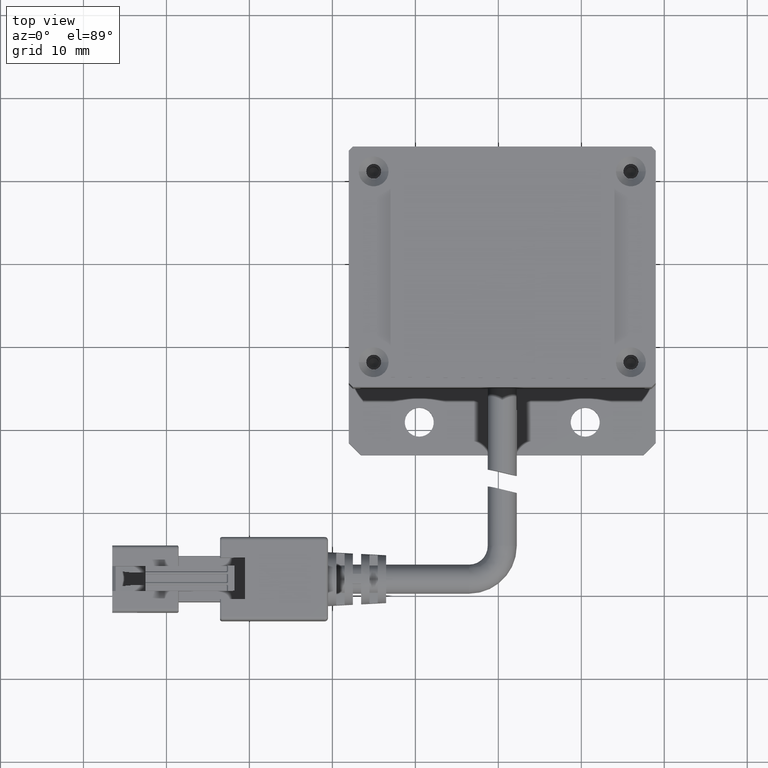
[diagram: clean part render]
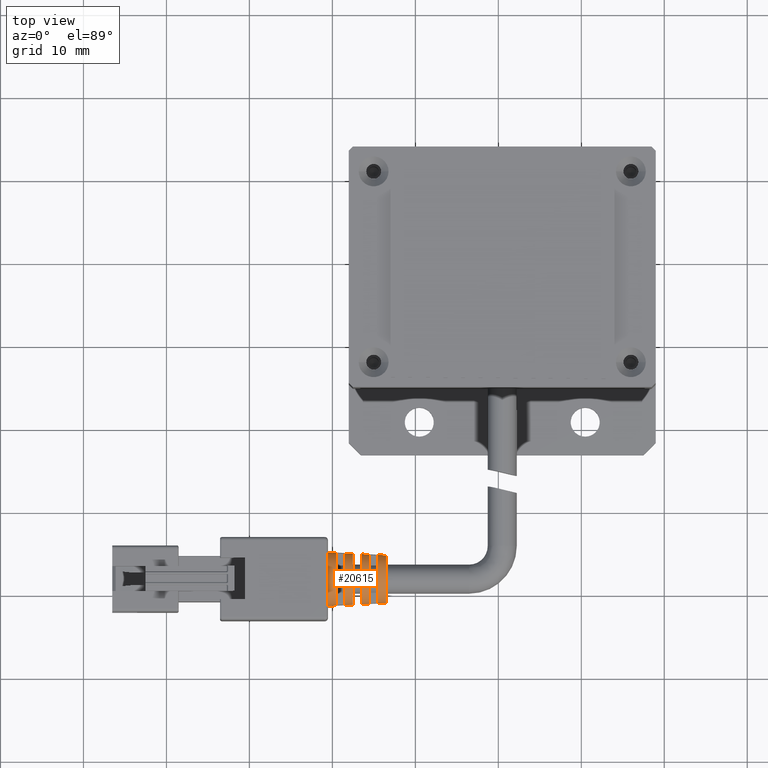
[diagram: same view with one face highlighted and labeled with its STEP entity id]
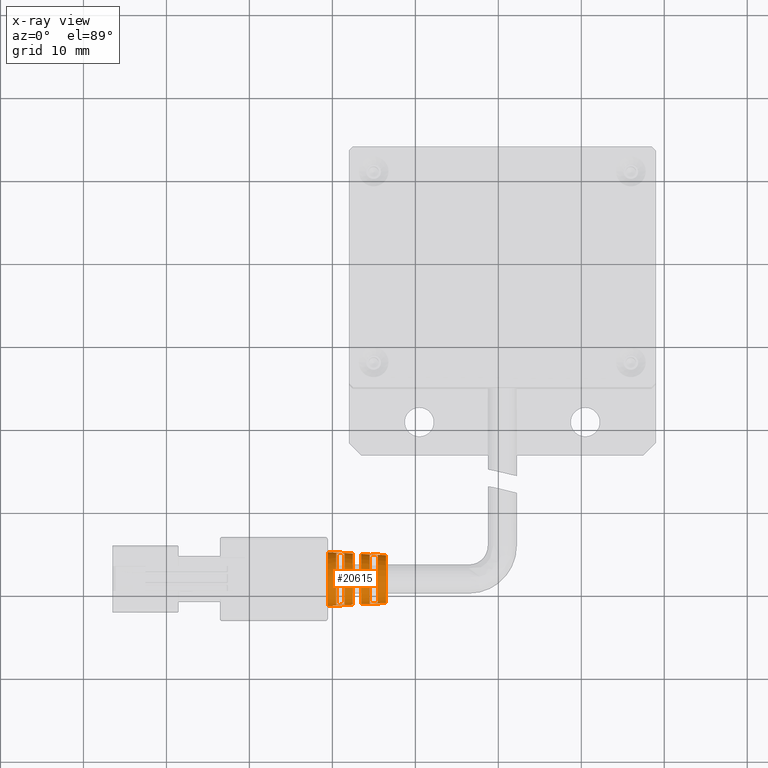
[diagram: x-ray of the same camera — body ghosted, the highlighted face saturated]
A machine part, top view. The second image highlights one B-rep face of the part: STEP entity #20615.
The next image is the same camera in x-ray: the body ghosted, the highlighted face saturated — about 0% of this face is hidden behind the body in this view.
In plain terms, the highlighted conical surface has half-angle 3 deg.
Its self-contained STEP definition (entity closure, byte-faithful):
#107 = ORIENTED_EDGE ( 'NONE', *, *, #15529, .T. ) ;
#405 = ORIENTED_EDGE ( 'NONE', *, *, #11878, .F. ) ;
#526 = DIRECTION ( 'NONE',  ( 0.0000000000000000000, -1.000000000000000000, 8.273235679558057500E-016 ) ) ;
#597 = VERTEX_POINT ( 'NONE', #7125 ) ;
#691 = CARTESIAN_POINT ( 'NONE',  ( -20.52940053432780200, -34.80364642994796000, 3.999999999983631300 ) ) ;
#806 = EDGE_CURVE ( 'NONE', #25833, #20537, #4592, .T. ) ;
#917 = CIRCLE ( 'NONE', #20369, 2.883145545018506200 ) ;
#1130 = VERTEX_POINT ( 'NONE', #8537 ) ;
#1606 = DIRECTION ( 'NONE',  ( 0.0000000000000000000, -1.000000000000000000, 0.0000000000000000000 ) ) ;
#1829 = VERTEX_POINT ( 'NONE', #7288 ) ;
#1938 = CIRCLE ( 'NONE', #8331, 3.249999999999010600 ) ;
#2299 = CARTESIAN_POINT ( 'NONE',  ( -19.19606691330625700, -34.93063616931379300, 4.599999999983631400 ) ) ;
#2323 = EDGE_CURVE ( 'NONE', #20537, #25840, #25828, .T. ) ;
#2441 = DIRECTION ( 'NONE',  ( -1.000000000000000000, -6.162975822039154700E-033, -5.345529420184391300E-049 ) ) ;
#2724 = EDGE_LOOP ( 'NONE', ( #23426, #11691, #19900, #20508 ) ) ;
#2835 = CARTESIAN_POINT ( 'NONE',  ( -17.52940053456927300, -41.14642309208613100, 3.999999999983630400 ) ) ;
#2969 = EDGE_CURVE ( 'NONE', #1829, #18333, #8017, .T. ) ;
#3032 = DIRECTION ( 'NONE',  ( 1.000000000000000000, 6.162975822039154700E-033, 5.345529420184391300E-049 ) ) ;
#3036 = CARTESIAN_POINT ( 'NONE',  ( -14.52940053456927500, -40.92722839671847600, 4.599999999983629600 ) ) ;
#3129 = B_SPLINE_CURVE_WITH_KNOTS ( 'NONE', 3,
 ( #15617, #19739, #23838, #11562 ),
 .UNSPECIFIED., .F., .F.,
 ( 4, 4 ),
 ( 9.449387654586576900E-016, 0.001001423258045926400 ),
 .UNSPECIFIED. ) ;
#3308 = CARTESIAN_POINT ( 'NONE',  ( -19.52940053456699900, -34.91285098769622400, 4.599999999983631400 ) ) ;
#3363 = FACE_OUTER_BOUND ( 'NONE', #5613, .T. ) ;
#3486 = VERTEX_POINT ( 'NONE', #23489 ) ;
#3563 = DIRECTION ( 'NONE',  ( -0.9986295347545816000, 0.05233595624279531500, 1.094872672590912000E-017 ) ) ;
#3648 = CARTESIAN_POINT ( 'NONE',  ( -20.52940053432780200, -34.80364642994796000, 3.999999999983631300 ) ) ;
#3895 = CIRCLE ( 'NONE', #17153, 3.040368882866441200 ) ;
#4023 = FACE_BOUND ( 'NONE', #20098, .T. ) ;
#4357 = CARTESIAN_POINT ( 'NONE',  ( -18.52940053454754800, -34.96622271903446900, 4.599999999983630500 ) ) ;
#4428 = ORIENTED_EDGE ( 'NONE', *, *, #21077, .T. ) ;
#4498 = CARTESIAN_POINT ( 'NONE',  ( -14.86273350399157800, -40.94507437716065100, 4.599999999983629600 ) ) ;
#4536 = CARTESIAN_POINT ( 'NONE',  ( -13.52940053455017600, -35.17050088491654900, 3.999999999983631300 ) ) ;
#4592 = CIRCLE ( 'NONE', #20443, 3.040368882866441200 ) ;
#4795 = VERTEX_POINT ( 'NONE', #3308 ) ;
#4838 = EDGE_CURVE ( 'NONE', #3486, #13870, #6812, .T. ) ;
#5196 = ORIENTED_EDGE ( 'NONE', *, *, #13001, .T. ) ;
#5266 = EDGE_CURVE ( 'NONE', #1130, #7643, #8502, .T. ) ;
#5380 = EDGE_CURVE ( 'NONE', #7643, #3486, #21722, .T. ) ;
#5613 = EDGE_LOOP ( 'NONE', ( #14710, #107, #5734, #14629, #8278, #4428, #20799, #9332, #6906, #19671, #25099, #405 ) ) ;
#5734 = ORIENTED_EDGE ( 'NONE', *, *, #806, .T. ) ;
#5921 = DIRECTION ( 'NONE',  ( -1.000000000000000000, -6.162975822039154700E-033, -5.345529420184391300E-049 ) ) ;
#5971 = EDGE_CURVE ( 'NONE', #15793, #22580, #12969, .T. ) ;
#6409 = EDGE_CURVE ( 'NONE', #4795, #21352, #11981, .T. ) ;
#6558 = CARTESIAN_POINT ( 'NONE',  ( -15.19606684410781700, -40.96291343481343700, 4.599999999983629600 ) ) ;
#6812 = CIRCLE ( 'NONE', #8781, 2.987961103584790800 ) ;
#6906 = ORIENTED_EDGE ( 'NONE', *, *, #24297, .T. ) ;
#6931 = CARTESIAN_POINT ( 'NONE',  ( -16.86273354202424100, -38.65364642993505800, 6.998397299985025900 ) ) ;
#7089 = CARTESIAN_POINT ( 'NONE',  ( -16.52940053453607700, -41.09401531280149600, 3.999999999983630400 ) ) ;
#7122 = EDGE_CURVE ( 'NONE', #597, #23516, #917, .T. ) ;
#7125 = CARTESIAN_POINT ( 'NONE',  ( -13.52940053455017600, -40.93679197495356400, 3.999999999983630400 ) ) ;
#7288 = CARTESIAN_POINT ( 'NONE',  ( -17.52940053456222500, -38.65364642993505800, 7.034018372034805300 ) ) ;
#7484 = VECTOR ( 'NONE', #8149, 1000.000000000000200 ) ;
#7639 = CARTESIAN_POINT ( 'NONE',  ( -15.52940053455972500, -38.05364642993505700, 3.999999999983630400 ) ) ;
#7643 = VERTEX_POINT ( 'NONE', #3036 ) ;
#8017 = B_SPLINE_CURVE_WITH_KNOTS ( 'NONE', 3,
 ( #17179, #19249, #6931, #21276 ),
 .UNSPECIFIED., .F., .F.,
 ( 4, 4 ),
 ( 1.407150810064509900E-015, 0.001001426938980520000 ),
 .UNSPECIFIED. ) ;
#8079 = DIRECTION ( 'NONE',  ( 1.000000000000000000, 6.162975822039154700E-033, 5.345529420184391300E-049 ) ) ;
#8125 = CARTESIAN_POINT ( 'NONE',  ( -20.52940053432780200, -41.30364642992215400, 3.999999999983630400 ) ) ;
#8149 = DIRECTION ( 'NONE',  ( -0.9986295347545816000, -0.05233595624279531500, -4.539420596603597400E-018 ) ) ;
#8278 = ORIENTED_EDGE ( 'NONE', *, *, #18696, .T. ) ;
#8331 = AXIS2_PLACEMENT_3D ( 'NONE', #20383, #8079, #22414 ) ;
#8489 = VECTOR ( 'NONE', #19144, 1000.000000000000200 ) ;
#8502 = CIRCLE ( 'NONE', #16896, 2.935553324303140400 ) ;
#8537 = CARTESIAN_POINT ( 'NONE',  ( -14.52940053457772900, -35.18006446315118300, 4.599999999983629600 ) ) ;
#8762 = CARTESIAN_POINT ( 'NONE',  ( -19.52940053457882300, -38.05364642993505700, 3.999999999983630400 ) ) ;
#8781 = AXIS2_PLACEMENT_3D ( 'NONE', #7639, #21968, #9701 ) ;
#8915 = CARTESIAN_POINT ( 'NONE',  ( -17.19606688121181600, -37.45364642993506300, 7.016210776912242200 ) ) ;
#9116 = CARTESIAN_POINT ( 'NONE',  ( -16.52940053453607700, -38.05364642993505700, 3.999999999983630400 ) ) ;
#9332 = ORIENTED_EDGE ( 'NONE', *, *, #5971, .F. ) ;
#9478 = FACE_BOUND ( 'NONE', #2724, .T. ) ;
#9701 = DIRECTION ( 'NONE',  ( 0.0000000000000000000, -1.000000000000000000, 0.0000000000000000000 ) ) ;
#9702 = DIRECTION ( 'NONE',  ( -1.000000000000000000, -6.162975822039154700E-033, -5.345529420184391300E-049 ) ) ;
#10159 = CARTESIAN_POINT ( 'NONE',  ( -14.52940053458337200, -38.05364642993505700, 3.999999999983630400 ) ) ;
#10389 = AXIS2_PLACEMENT_3D ( 'NONE', #21970, #9702, #24037 ) ;
#10429 = AXIS2_PLACEMENT_3D ( 'NONE', #18253, #5921, #20307 ) ;
#10835 = DIRECTION ( 'NONE',  ( 0.0000000000000000000, -1.000000000000000000, 0.0000000000000000000 ) ) ;
#10857 = CARTESIAN_POINT ( 'NONE',  ( -14.52940053457772900, -35.18006446315118300, 4.599999999983629600 ) ) ;
#10988 = CARTESIAN_POINT ( 'NONE',  ( -16.86273354202423700, -37.45364642993506300, 6.998397299985025900 ) ) ;
#11562 = CARTESIAN_POINT ( 'NONE',  ( -19.52940053457408000, -41.19444187217425900, 4.599999999983630500 ) ) ;
#11685 = CARTESIAN_POINT ( 'NONE',  ( -17.52940053456645600, -37.45364642993506300, 7.034018372035030900 ) ) ;
#11691 = ORIENTED_EDGE ( 'NONE', *, *, #24998, .T. ) ;
#11878 = EDGE_CURVE ( 'NONE', #597, #26214, #13667, .T. ) ;
#11981 = B_SPLINE_CURVE_WITH_KNOTS ( 'NONE', 3,
 ( #14596, #2299, #16654, #4357 ),
 .UNSPECIFIED., .F., .F.,
 ( 4, 4 ),
 ( 2.341740480690032800E-015, 0.001001423258043091700 ),
 .UNSPECIFIED. ) ;
#12248 = DIRECTION ( 'NONE',  ( 0.0000000000000000000, -1.000000000000000000, 0.0000000000000000000 ) ) ;
#12590 = LINE ( 'NONE', #3648, #22827 ) ;
#12886 = DIRECTION ( 'NONE',  ( 1.000000000000000000, 6.162975822039154700E-033, 5.345529420184391300E-049 ) ) ;
#12969 = LINE ( 'NONE', #16301, #7484 ) ;
#13001 = EDGE_CURVE ( 'NONE', #13870, #1130, #23630, .T. ) ;
#13082 = CARTESIAN_POINT ( 'NONE',  ( -17.52940053456645600, -37.45364642993506300, 7.034018372035030900 ) ) ;
#13243 = EDGE_CURVE ( 'NONE', #24907, #22580, #1938, .T. ) ;
#13409 = DIRECTION ( 'NONE',  ( 0.0000000000000000000, -1.000000000000000000, 8.558452326718922600E-016 ) ) ;
#13667 = LINE ( 'NONE', #8125, #19153 ) ;
#13870 = VERTEX_POINT ( 'NONE', #20078 ) ;
#13895 = AXIS2_PLACEMENT_3D ( 'NONE', #8762, #23133, #10835 ) ;
#14184 = CIRCLE ( 'NONE', #10429, 3.092776662151075500 ) ;
#14453 = VERTEX_POINT ( 'NONE', #21194 ) ;
#14596 = CARTESIAN_POINT ( 'NONE',  ( -19.52940053456699900, -34.91285098769622400, 4.599999999983631400 ) ) ;
#14629 = ORIENTED_EDGE ( 'NONE', *, *, #2323, .T. ) ;
#14662 = CARTESIAN_POINT ( 'NONE',  ( -16.52940053453988200, -38.65364642993505800, 6.980577619154746400 ) ) ;
#14710 = ORIENTED_EDGE ( 'NONE', *, *, #7122, .T. ) ;
#14732 = CARTESIAN_POINT ( 'NONE',  ( -13.52940053455017600, -38.05364642993505700, 3.999999999983630400 ) ) ;
#15360 = CARTESIAN_POINT ( 'NONE',  ( -16.52940053453607700, -38.05364642993505700, 3.999999999983630400 ) ) ;
#15378 = EDGE_CURVE ( 'NONE', #18333, #26214, #3895, .T. ) ;
#15529 = EDGE_CURVE ( 'NONE', #23516, #25833, #12590, .T. ) ;
#15617 = CARTESIAN_POINT ( 'NONE',  ( -18.52940053455040100, -41.14107014083579400, 4.599999999983630500 ) ) ;
#15793 = VERTEX_POINT ( 'NONE', #2835 ) ;
#15899 = DIRECTION ( 'NONE',  ( -1.000000000000000000, -6.162975822039154700E-033, -5.345529420184391300E-049 ) ) ;
#16301 = CARTESIAN_POINT ( 'NONE',  ( -20.52940053432780200, -41.30364642992215400, 3.999999999983630400 ) ) ;
#16520 = AXIS2_PLACEMENT_3D ( 'NONE', #25107, #12886, #526 ) ;
#16553 = DIRECTION ( 'NONE',  ( 1.000000000000000000, 6.162975822039154700E-033, 5.345529420184391300E-049 ) ) ;
#16654 = CARTESIAN_POINT ( 'NONE',  ( -18.86273357489992700, -34.94842665316996000, 4.599999999983630500 ) ) ;
#16815 = DIRECTION ( 'NONE',  ( 0.0000000000000000000, -1.000000000000000000, 0.0000000000000000000 ) ) ;
#16896 = AXIS2_PLACEMENT_3D ( 'NONE', #10159, #24464, #12248 ) ;
#17153 = AXIS2_PLACEMENT_3D ( 'NONE', #15360, #3032, #17431 ) ;
#17179 = CARTESIAN_POINT ( 'NONE',  ( -17.52940053456222500, -38.65364642993505800, 7.034018372034805300 ) ) ;
#17431 = DIRECTION ( 'NONE',  ( 0.0000000000000000000, -1.000000000000000000, -8.558452326718922600E-016 ) ) ;
#18253 = CARTESIAN_POINT ( 'NONE',  ( -17.52940053456927300, -38.05364642993505700, 3.999999999983630400 ) ) ;
#18333 = VERTEX_POINT ( 'NONE', #14662 ) ;
#18644 = CARTESIAN_POINT ( 'NONE',  ( -19.52940053457408000, -41.19444187217425900, 4.599999999983630500 ) ) ;
#18696 = EDGE_CURVE ( 'NONE', #25840, #19701, #22190, .T. ) ;
#18869 = CARTESIAN_POINT ( 'NONE',  ( -14.52940053456927500, -40.92722839671847600, 4.599999999983629600 ) ) ;
#18956 = CARTESIAN_POINT ( 'NONE',  ( -15.19606684410781500, -35.14437942505667700, 4.599999999983630500 ) ) ;
#19056 = CARTESIAN_POINT ( 'NONE',  ( -15.52940053455745200, -35.12654691735696100, 4.599999999983630500 ) ) ;
#19144 = DIRECTION ( 'NONE',  ( -0.9986295347545816000, 0.05233595624279531500, 1.094872672590912000E-017 ) ) ;
#19153 = VECTOR ( 'NONE', #20422, 1000.000000000000200 ) ;
#19249 = CARTESIAN_POINT ( 'NONE',  ( -17.19606688121181600, -38.65364642993505800, 7.016210776912242200 ) ) ;
#19671 = ORIENTED_EDGE ( 'NONE', *, *, #2969, .T. ) ;
#19701 = VERTEX_POINT ( 'NONE', #22681 ) ;
#19739 = CARTESIAN_POINT ( 'NONE',  ( -18.86273357489992400, -41.15886620670015400, 4.599999999983630500 ) ) ;
#19900 = ORIENTED_EDGE ( 'NONE', *, *, #6409, .T. ) ;
#19915 = CARTESIAN_POINT ( 'NONE',  ( -20.52940053455517600, -41.30364642993406900, 3.999999999983630400 ) ) ;
#20041 = CARTESIAN_POINT ( 'NONE',  ( -20.52940053432780200, -38.05364642993505700, 3.999999999983630400 ) ) ;
#20078 = CARTESIAN_POINT ( 'NONE',  ( -15.52940053455745200, -35.12654691735696100, 4.599999999983630500 ) ) ;
#20098 = EDGE_LOOP ( 'NONE', ( #24667, #21646, #5196, #23744 ) ) ;
#20186 = VERTEX_POINT ( 'NONE', #18644 ) ;
#20307 = DIRECTION ( 'NONE',  ( 0.0000000000000000000, -1.000000000000000000, 0.0000000000000000000 ) ) ;
#20369 = AXIS2_PLACEMENT_3D ( 'NONE', #14732, #2441, #16815 ) ;
#20383 = CARTESIAN_POINT ( 'NONE',  ( -20.52940053455517600, -38.05364642993505700, 3.999999999983630400 ) ) ;
#20422 = DIRECTION ( 'NONE',  ( -0.9986295347545816000, -0.05233595624279531500, -4.539420596603597400E-018 ) ) ;
#20443 = AXIS2_PLACEMENT_3D ( 'NONE', #9116, #16553, #13409 ) ;
#20508 = ORIENTED_EDGE ( 'NONE', *, *, #26521, .T. ) ;
#20537 = VERTEX_POINT ( 'NONE', #23868 ) ;
#20615 = ADVANCED_FACE ( 'NONE', ( #9478, #4023, #3363 ), #21985, .T. ) ;
#20799 = ORIENTED_EDGE ( 'NONE', *, *, #13243, .T. ) ;
#20915 = CARTESIAN_POINT ( 'NONE',  ( -15.52940053455882300, -40.98074594251322400, 4.599999999983629600 ) ) ;
#21077 = EDGE_CURVE ( 'NONE', #19701, #24907, #24825, .T. ) ;
#21194 = CARTESIAN_POINT ( 'NONE',  ( -18.52940053455040100, -41.14107014083579400, 4.599999999983630500 ) ) ;
#21276 = CARTESIAN_POINT ( 'NONE',  ( -16.52940053453988200, -38.65364642993505800, 6.980577619154746400 ) ) ;
#21352 = VERTEX_POINT ( 'NONE', #26585 ) ;
#21646 = ORIENTED_EDGE ( 'NONE', *, *, #4838, .T. ) ;
#21722 = B_SPLINE_CURVE_WITH_KNOTS ( 'NONE', 3,
 ( #18869, #4498, #6558, #20915 ),
 .UNSPECIFIED., .F., .F.,
 ( 4, 4 ),
 ( 2.821323884305459600E-015, 0.001001431039903066600 ),
 .UNSPECIFIED. ) ;
#21797 = CARTESIAN_POINT ( 'NONE',  ( -16.52940053453607700, -35.01327754706861800, 3.999999999983631300 ) ) ;
#21968 = DIRECTION ( 'NONE',  ( -1.000000000000000000, -6.162975822039154700E-033, -5.345529420184391300E-049 ) ) ;
#21970 = CARTESIAN_POINT ( 'NONE',  ( -17.52940053456927300, -38.05364642993505700, 3.999999999983630400 ) ) ;
#21985 = CONICAL_SURFACE ( 'NONE', #23508, 3.249999999987096500, 0.05235987755968116900 ) ;
#22190 = CIRCLE ( 'NONE', #10389, 3.092776662151075500 ) ;
#22414 = DIRECTION ( 'NONE',  ( 0.0000000000000000000, -1.000000000000000000, 0.0000000000000000000 ) ) ;
#22516 = EDGE_CURVE ( 'NONE', #14453, #20186, #3129, .T. ) ;
#22580 = VERTEX_POINT ( 'NONE', #19915 ) ;
#22681 = CARTESIAN_POINT ( 'NONE',  ( -17.52940053456927300, -34.96086976778398300, 3.999999999983631300 ) ) ;
#22827 = VECTOR ( 'NONE', #3563, 1000.000000000000200 ) ;
#22858 = CIRCLE ( 'NONE', #16520, 3.145184441432725900 ) ;
#23133 = DIRECTION ( 'NONE',  ( -1.000000000000000000, -6.162975822039154700E-033, -5.345529420184391300E-049 ) ) ;
#23160 = CARTESIAN_POINT ( 'NONE',  ( -14.86273350399157200, -35.16221848270946300, 4.599999999983629600 ) ) ;
#23426 = ORIENTED_EDGE ( 'NONE', *, *, #22516, .T. ) ;
#23489 = CARTESIAN_POINT ( 'NONE',  ( -15.52940053455882300, -40.98074594251322400, 4.599999999983629600 ) ) ;
#23508 = AXIS2_PLACEMENT_3D ( 'NONE', #20041, #15899, #1606 ) ;
#23516 = VERTEX_POINT ( 'NONE', #4536 ) ;
#23630 = B_SPLINE_CURVE_WITH_KNOTS ( 'NONE', 3,
 ( #19056, #18956, #23160, #10857 ),
 .UNSPECIFIED., .F., .F.,
 ( 4, 4 ),
 ( 4.709287019939731200E-016, 0.001001431039896518900 ),
 .UNSPECIFIED. ) ;
#23744 = ORIENTED_EDGE ( 'NONE', *, *, #5266, .T. ) ;
#23838 = CARTESIAN_POINT ( 'NONE',  ( -19.19606691330625700, -41.17665669055632100, 4.599999999983630500 ) ) ;
#23868 = CARTESIAN_POINT ( 'NONE',  ( -16.52940053454563000, -37.45364642993506300, 6.980577619155053700 ) ) ;
#24037 = DIRECTION ( 'NONE',  ( 0.0000000000000000000, -1.000000000000000000, 0.0000000000000000000 ) ) ;
#24297 = EDGE_CURVE ( 'NONE', #15793, #1829, #14184, .T. ) ;
#24464 = DIRECTION ( 'NONE',  ( 1.000000000000000000, 6.162975822039154700E-033, 5.345529420184391300E-049 ) ) ;
#24667 = ORIENTED_EDGE ( 'NONE', *, *, #5380, .T. ) ;
#24704 = CARTESIAN_POINT ( 'NONE',  ( -20.52940053455517600, -34.80364642993604500, 3.999999999983631300 ) ) ;
#24825 = LINE ( 'NONE', #691, #8489 ) ;
#24907 = VERTEX_POINT ( 'NONE', #24704 ) ;
#24998 = EDGE_CURVE ( 'NONE', #20186, #4795, #25619, .T. ) ;
#25099 = ORIENTED_EDGE ( 'NONE', *, *, #15378, .T. ) ;
#25107 = CARTESIAN_POINT ( 'NONE',  ( -18.52940053454562600, -38.05364642993505700, 3.999999999983630400 ) ) ;
#25300 = CARTESIAN_POINT ( 'NONE',  ( -16.52940053454563000, -37.45364642993506300, 6.980577619155053700 ) ) ;
#25619 = CIRCLE ( 'NONE', #13895, 3.197592220717360200 ) ;
#25828 = B_SPLINE_CURVE_WITH_KNOTS ( 'NONE', 3,
 ( #25300, #10988, #8915, #13082 ),
 .UNSPECIFIED., .F., .F.,
 ( 4, 4 ),
 ( 1.952605237728863600E-015, 0.001001426938979543600 ),
 .UNSPECIFIED. ) ;
#25833 = VERTEX_POINT ( 'NONE', #21797 ) ;
#25840 = VERTEX_POINT ( 'NONE', #11685 ) ;
#26214 = VERTEX_POINT ( 'NONE', #7089 ) ;
#26521 = EDGE_CURVE ( 'NONE', #21352, #14453, #22858, .T. ) ;
#26585 = CARTESIAN_POINT ( 'NONE',  ( -18.52940053454754800, -34.96622271903446900, 4.599999999983630500 ) ) ;